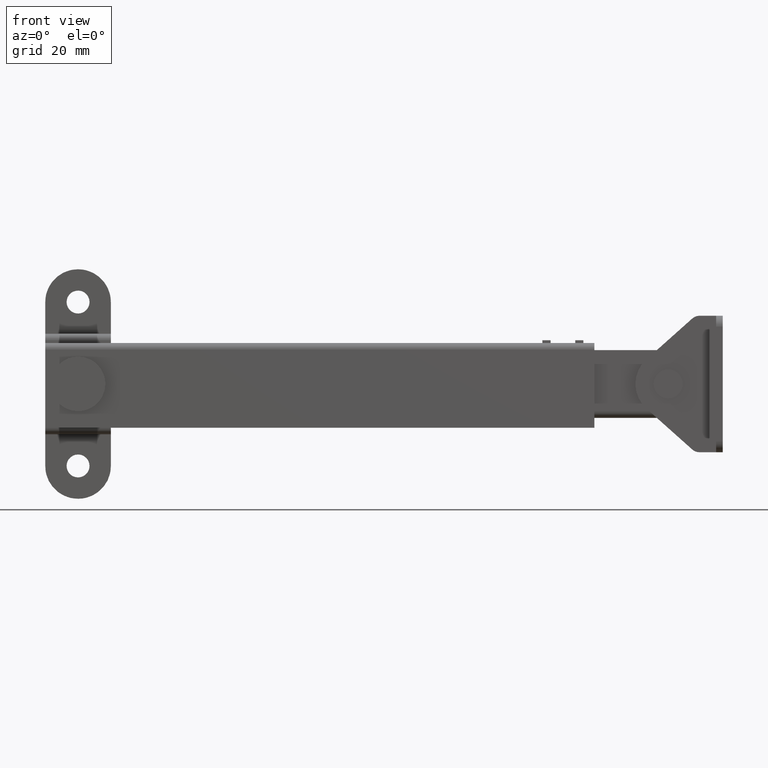
[diagram: clean part render]
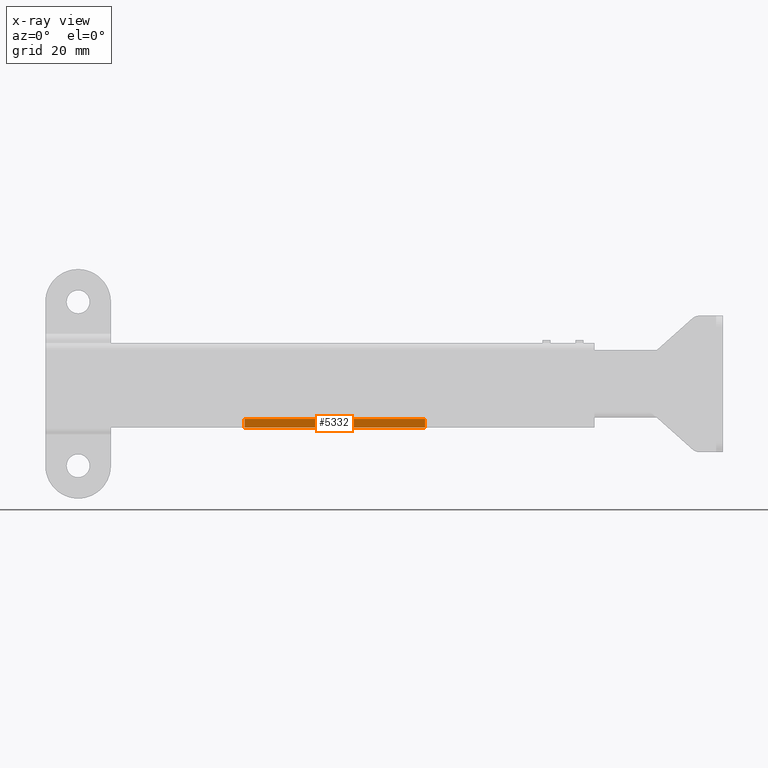
[diagram: x-ray — body ghosted, one internal face saturated and labeled with its STEP entity id]
A machine part, front view, then the same camera in x-ray: the body is ghosted and one INTERNAL B-rep face — a face not visible from any outside direction — is saturated and labeled: STEP entity #5332.
In plain terms, the highlighted face is a freeform B-spline surface patch.
Its self-contained STEP definition (entity closure, byte-faithful):
#4568=CARTESIAN_POINT('',(30.499999999948049,-7.750000000035750,-7.999999999983689));
#4569=VERTEX_POINT('',#4568);
#4575=CARTESIAN_POINT('',(63.499999999948002,-7.750000000035750,-7.999999999983689));
#4576=VERTEX_POINT('',#4575);
#4577=CARTESIAN_POINT('',(63.499999999948002,-7.750000000035750,-7.999999999983689));
#4578=CARTESIAN_POINT('',(30.499999999948049,-7.750000000035750,-7.999999999983689));
#4579=QUASI_UNIFORM_CURVE('',1,(#4577,#4578),.UNSPECIFIED.,.F.,.U.);
#4580=EDGE_CURVE('',#4576,#4569,#4579,.T.);
#5016=CARTESIAN_POINT('',(63.499999999948002,-7.750000000035750,-6.399999999982750));
#5017=VERTEX_POINT('',#5016);
#5023=CARTESIAN_POINT('',(30.499999999948049,-7.750000000035750,-6.399999999982750));
#5024=VERTEX_POINT('',#5023);
#5025=CARTESIAN_POINT('',(63.499999999948002,-7.750000000035750,-6.399999999982750));
#5026=CARTESIAN_POINT('',(30.499999999948049,-7.750000000035750,-6.399999999982750));
#5027=QUASI_UNIFORM_CURVE('',1,(#5025,#5026),.UNSPECIFIED.,.F.,.U.);
#5028=EDGE_CURVE('',#5017,#5024,#5027,.T.);
#5309=CARTESIAN_POINT('',(30.499999999948049,-7.750000000035750,-6.399999999982750));
#5310=CARTESIAN_POINT('',(30.499999999948049,-7.750000000035750,-7.999999999983689));
#5311=QUASI_UNIFORM_CURVE('',1,(#5309,#5310),.UNSPECIFIED.,.F.,.U.);
#5312=EDGE_CURVE('',#5024,#4569,#5311,.T.);
#5317=CARTESIAN_POINT('',(28.851650063908458,-7.750000000035750,-6.320080003083814));
#5318=CARTESIAN_POINT('',(28.851650063908458,-7.750000000035749,-8.079920039797971));
#5319=CARTESIAN_POINT('',(65.148350821116580,-7.750000000035749,-6.320080003083814));
#5320=CARTESIAN_POINT('',(65.148350821116580,-7.750000000035749,-8.079920039797971));
#5321=B_SPLINE_SURFACE_WITH_KNOTS('',1,1,((#5317,#5319),(#5318,#5320)),.UNSPECIFIED.,.F.,.F.,.U.,(2,2),(2,2),(0.041708334948495,0.958291687403247),(0.0,36.296700757208129),.UNSPECIFIED.);
#5322=ORIENTED_EDGE('',*,*,#4580,.T.);
#5323=ORIENTED_EDGE('',*,*,#5312,.F.);
#5324=ORIENTED_EDGE('',*,*,#5028,.F.);
#5325=CARTESIAN_POINT('',(63.499999999948002,-7.750000000035750,-6.399999999982750));
#5326=CARTESIAN_POINT('',(63.499999999948002,-7.750000000035750,-7.999999999983689));
#5327=QUASI_UNIFORM_CURVE('',1,(#5325,#5326),.UNSPECIFIED.,.F.,.U.);
#5328=EDGE_CURVE('',#5017,#4576,#5327,.T.);
#5329=ORIENTED_EDGE('',*,*,#5328,.T.);
#5330=EDGE_LOOP('',(#5322,#5323,#5324,#5329));
#5331=FACE_OUTER_BOUND('',#5330,.T.);
#5332=ADVANCED_FACE('',(#5331),#5321,.F.);